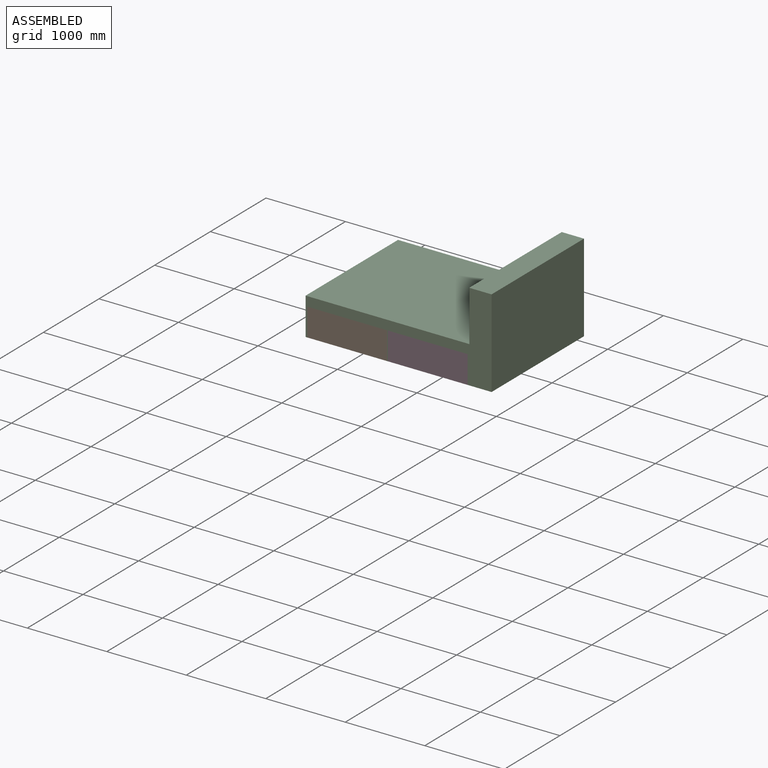
[diagram: assembled view]
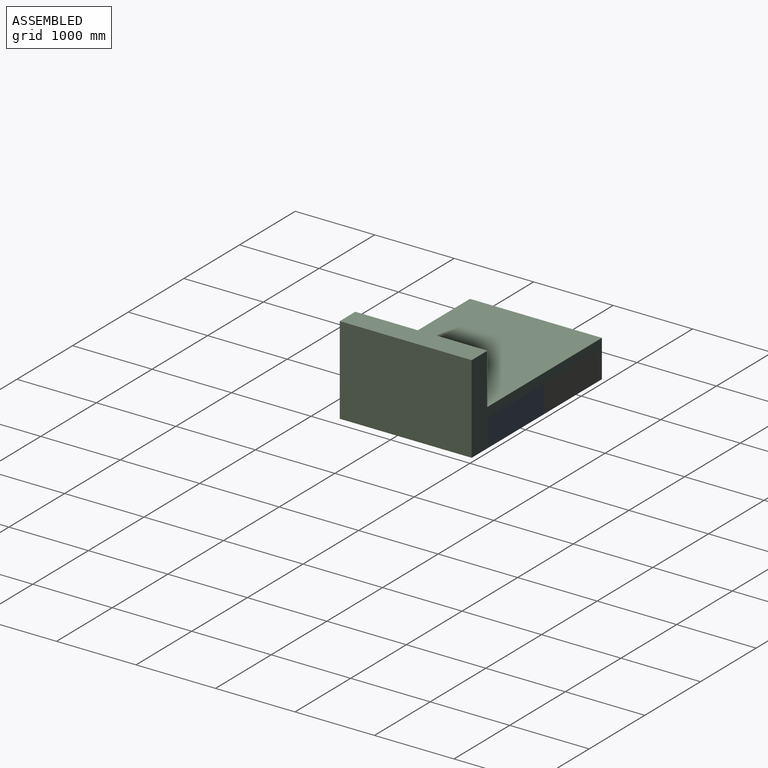
[diagram: assembled view, second angle]
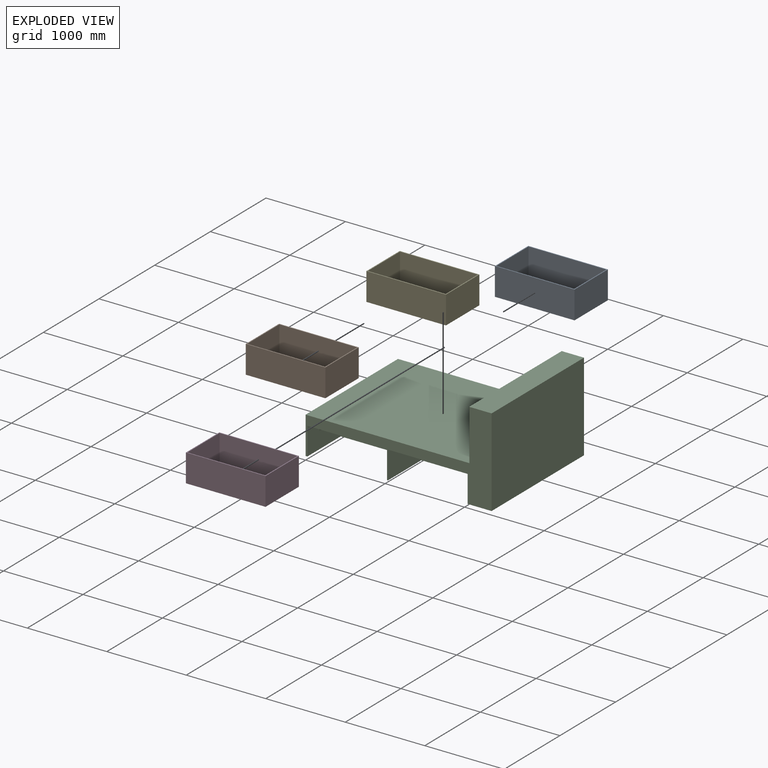
[diagram: exploded view]
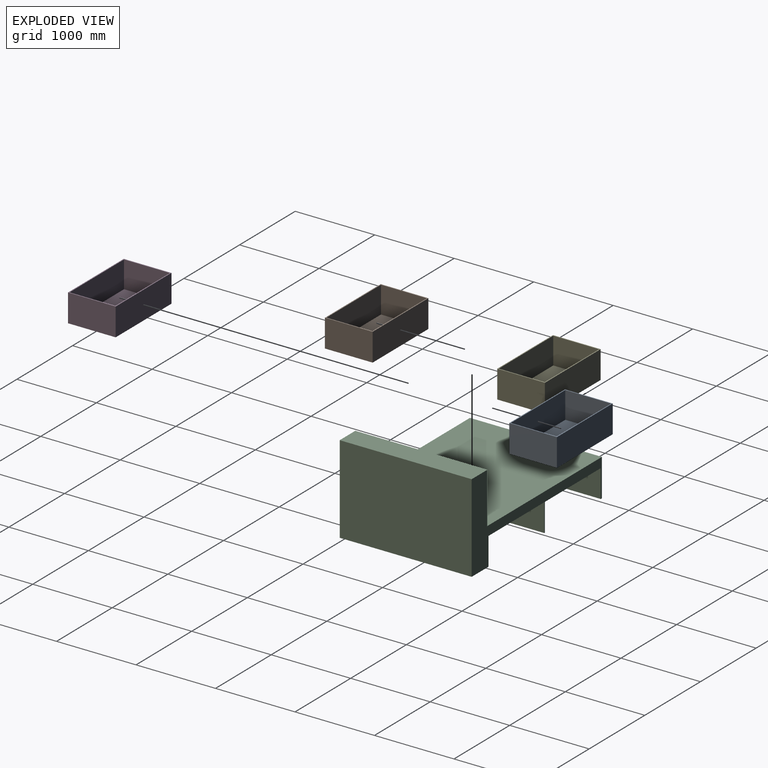
[diagram: exploded view, second angle]
ASSEMBLY  parts=5 mates=4
PART A: 11 faces, bbox 1002x600x350 mm
  f0: plane 1002x600mm, normal (0,0,1), area 37872mm2, adj f2,f3,f4,f5,f7,f8,f9,f10
  f1: plane 1002x600mm, normal (0,0,-1), area 601200mm2, adj f2,f3,f4,f5
  f2: plane 600x350mm, normal (-1,0,0), area 210000mm2, adj f0,f1,f4,f5
  f3: plane 600x350mm, normal (1,0,0), area 210000mm2, adj f0,f1,f4,f5
  f4: plane 1002x350mm, normal (0,-1,0), area 350700mm2, adj f0,f1,f2,f3
  f5: plane 1002x350mm, normal (0,1,0), area 350700mm2, adj f0,f1,f2,f3
  f6: plane 978x576mm, normal (0,0,1), area 563328mm2, adj f7,f8,f9,f10
  f7: plane 576x338mm, normal (1,0,0), area 194688mm2, adj f0,f6,f9,f10
  f8: plane 576x338mm, normal (-1,0,0), area 194688mm2, adj f0,f6,f9,f10
  f9: plane 978x338mm, normal (0,1,0), area 330564mm2, adj f0,f6,f7,f8
  f10: plane 978x338mm, normal (0,-1,0), area 330564mm2, adj f0,f6,f7,f8
PART B: 11 faces, bbox 1002x600x350 mm
  f0: plane 1002x600mm, normal (0,0,1), area 37872mm2, adj f2,f3,f4,f5,f7,f8,f9,f10
  f1: plane 1002x600mm, normal (0,0,-1), area 601200mm2, adj f2,f3,f4,f5
  f2: plane 600x350mm, normal (1,0,0), area 210000mm2, adj f0,f1,f4,f5
  f3: plane 600x350mm, normal (-1,0,0), area 210000mm2, adj f0,f1,f4,f5
  f4: plane 1002x350mm, normal (0,1,0), area 350700mm2, adj f0,f1,f2,f3
  f5: plane 1002x350mm, normal (0,-1,0), area 350700mm2, adj f0,f1,f2,f3
  f6: plane 978x576mm, normal (0,0,1), area 563328mm2, adj f7,f8,f9,f10
  f7: plane 576x338mm, normal (-1,0,0), area 194688mm2, adj f0,f6,f9,f10
  f8: plane 576x338mm, normal (1,0,0), area 194688mm2, adj f0,f6,f9,f10
  f9: plane 978x338mm, normal (0,-1,0), area 330564mm2, adj f0,f6,f7,f8
  f10: plane 978x338mm, normal (0,1,0), area 330564mm2, adj f0,f6,f7,f8
PART C: 24 faces, bbox 2340x1660x1110 mm
  f0: plane 2340x1110mm, normal (0,-1,0), area 577600mm2, adj f2,f3,f4,f5,f6,f7,f17,f18
  f1: plane 2340x1110mm, normal (0,1,0), area 577600mm2, adj f2,f3,f4,f9,f10,f11,f13,f14
  f2: plane 1660x470mm, normal (-1,0,0), area 780200mm2, adj f0,f1,f3,f4
  f3: plane 2060x1660mm, normal (0,0,1), area 3419600mm2, adj f0,f1,f2,f21
  f4: plane 2340x1660mm, normal (0,0,-1), area 1479600mm2, adj f0,f1,f2,f5,f7,f8,f9,f11
  f5: plane 600x350mm, normal (-1,0,0), area 210000mm2, adj f0,f4,f6,f8
  f6: plane 1002x600mm, normal (0,0,-1), area 601200mm2, adj f0,f5,f7,f8
  f7: plane 600x350mm, normal (1,0,0), area 210000mm2, adj f0,f4,f6,f8
  f8: plane 1002x350mm, normal (0,-1,0), area 350700mm2, adj f4,f5,f6,f7
  f9: plane 600x350mm, normal (1,0,0), area 210000mm2, adj f1,f4,f10,f12
  f10: plane 1002x600mm, normal (0,0,-1), area 601200mm2, adj f1,f9,f11,f12
  f11: plane 600x350mm, normal (-1,0,0), area 210000mm2, adj f1,f4,f10,f12
  f12: plane 1002x350mm, normal (0,1,0), area 350700mm2, adj f4,f9,f10,f11
  f13: plane 600x350mm, normal (-1,0,0), area 210000mm2, adj f1,f4,f14,f16
  f14: plane 1002x600mm, normal (0,0,-1), area 601200mm2, adj f1,f13,f15,f16
  f15: plane 600x350mm, normal (1,0,0), area 210000mm2, adj f1,f4,f14,f16
  f16: plane 1002x350mm, normal (0,1,0), area 350700mm2, adj f4,f13,f14,f15
  f17: plane 600x350mm, normal (1,0,0), area 210000mm2, adj f0,f4,f18,f20
  f18: plane 1002x600mm, normal (0,0,-1), area 601200mm2, adj f0,f17,f19,f20
  f19: plane 600x350mm, normal (-1,0,0), area 210000mm2, adj f0,f4,f18,f20
  f20: plane 1002x350mm, normal (0,-1,0), area 350700mm2, adj f4,f17,f18,f19
  f21: plane 1660x640mm, normal (-1,0,0), area 1062400mm2, adj f0,f1,f3,f23
  f22: plane 1660x1110mm, normal (1,0,0), area 1842600mm2, adj f0,f1,f4,f23
  f23: plane 1660x280mm, normal (0,0,1), area 464800mm2, adj f0,f1,f21,f22
PART D: 11 faces, bbox 1002x600x350 mm
  f0: plane 1002x600mm, normal (0,0,-1), area 601200mm2, adj f1,f3,f4,f5
  f1: plane 600x350mm, normal (-1,0,0), area 210000mm2, adj f0,f2,f4,f5
  f2: plane 1002x600mm, normal (0,0,1), area 37872mm2, adj f1,f3,f4,f5,f7,f8,f9,f10
  f3: plane 600x350mm, normal (1,0,0), area 210000mm2, adj f0,f2,f4,f5
  f4: plane 1002x350mm, normal (0,1,0), area 350700mm2, adj f0,f1,f2,f3
  f5: plane 1002x350mm, normal (0,-1,0), area 350700mm2, adj f0,f1,f2,f3
  f6: plane 978x576mm, normal (0,0,1), area 563328mm2, adj f7,f8,f9,f10
  f7: plane 576x338mm, normal (1,0,0), area 194688mm2, adj f2,f6,f9,f10
  f8: plane 576x338mm, normal (-1,0,0), area 194688mm2, adj f2,f6,f9,f10
  f9: plane 978x338mm, normal (0,-1,0), area 330564mm2, adj f2,f6,f7,f8
  f10: plane 978x338mm, normal (0,1,0), area 330564mm2, adj f2,f6,f7,f8
PART E: 11 faces, bbox 1002x600x350 mm
  f0: plane 1002x600mm, normal (0,0,-1), area 601200mm2, adj f1,f3,f4,f5
  f1: plane 600x350mm, normal (1,0,0), area 210000mm2, adj f0,f2,f4,f5
  f2: plane 1002x600mm, normal (0,0,1), area 37872mm2, adj f1,f3,f4,f5,f7,f8,f9,f10
  f3: plane 600x350mm, normal (-1,0,0), area 210000mm2, adj f0,f2,f4,f5
  f4: plane 1002x350mm, normal (0,-1,0), area 350700mm2, adj f0,f1,f2,f3
  f5: plane 1002x350mm, normal (0,1,0), area 350700mm2, adj f0,f1,f2,f3
  f6: plane 978x576mm, normal (0,0,1), area 563328mm2, adj f7,f8,f9,f10
  f7: plane 576x338mm, normal (-1,0,0), area 194688mm2, adj f2,f6,f9,f10
  f8: plane 576x338mm, normal (1,0,0), area 194688mm2, adj f2,f6,f9,f10
  f9: plane 978x338mm, normal (0,1,0), area 330564mm2, adj f2,f6,f7,f8
  f10: plane 978x338mm, normal (0,-1,0), area 330564mm2, adj f2,f6,f7,f8
PLACE A rot(axis=(0,0,-1),0deg) t=(0,0,0)mm
PLACE B rot(axis=(0,0,-1),0deg) t=(0,0,0)mm
PLACE C rot(axis=(0,0,-1),0deg) t=(0,0,0)mm
PLACE D rot(axis=(0,0,-1),0deg) t=(0,0,0)mm
PLACE E rot(axis=(0,0,-1),0deg) t=(0,0,0)mm
MATE slider C.f1 <-> E.f5  axis (0,-1,0) through (1024,1660,0)mm
MATE slider A.f5 <-> C.f1  axis (0,1,0) through (1036,1660,0)mm
MATE slider D.f5 <-> C.f0  axis (0,-1,0) through (1036,0,0)mm
MATE slider C.f0 <-> B.f5  axis (0,1,0) through (1024,0,0)mm
